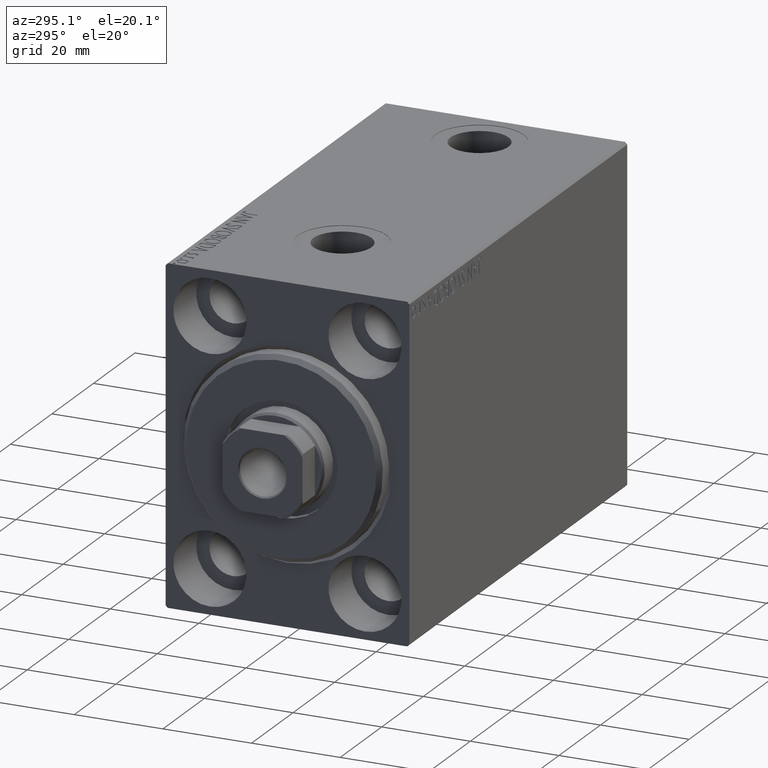
[diagram: clean part render]
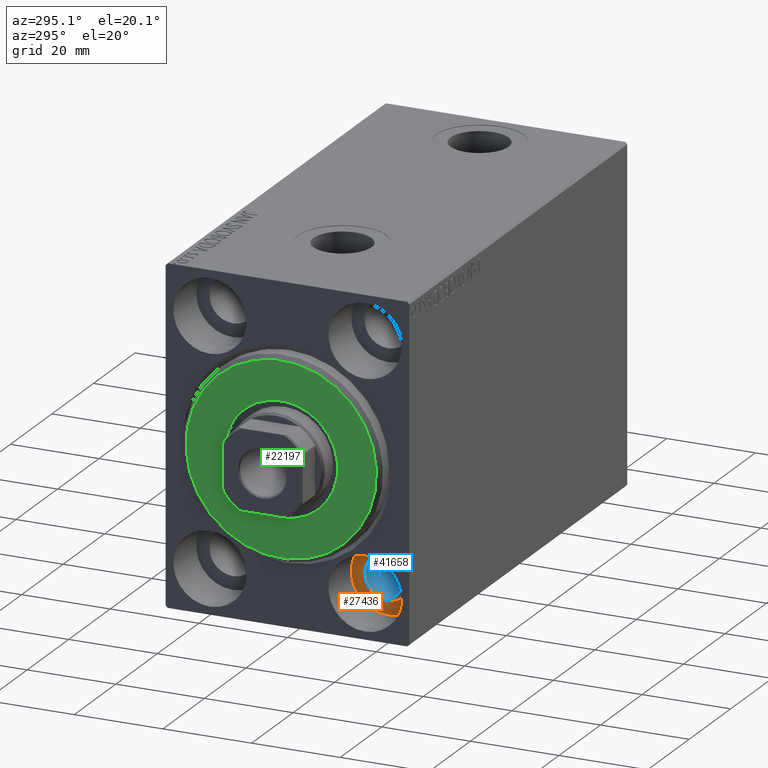
[diagram: same view with three faces highlighted in distinct colors, each labeled with its STEP entity id]
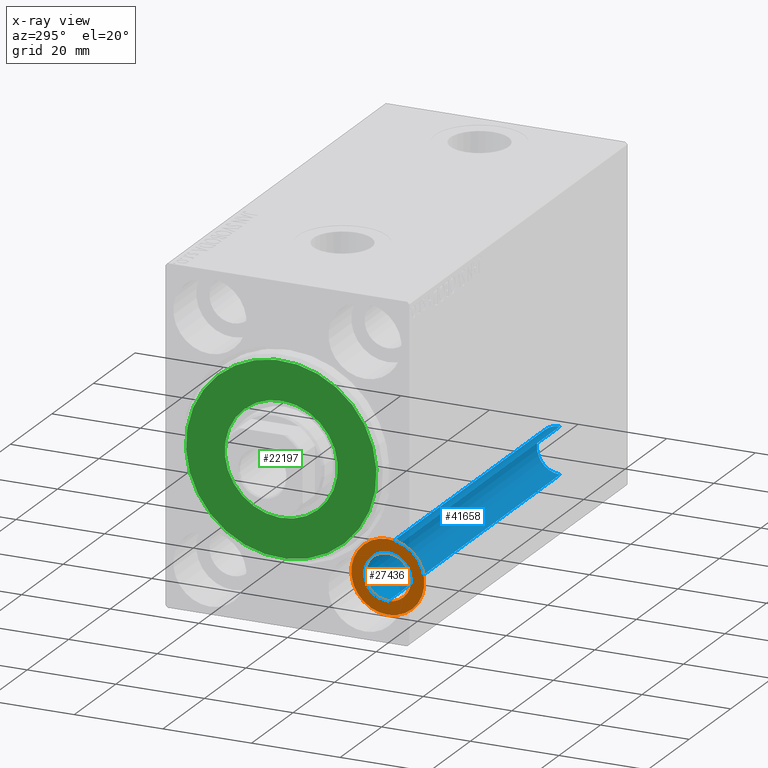
[diagram: x-ray of the same camera — body ghosted, the three highlighted faces saturated]
A machine part, auxiliary view with three faces highlighted in distinct colors.
The next image is the same camera in x-ray (body ghosted, the three faces saturated) — at least one of them is partly hidden behind the body in this view.
Their STEP definitions:

[orange] entity #27436 — the highlighted planar face has unit normal (-1, 0, 0).
#604 = AXIS2_PLACEMENT_3D ( 'NONE', #7186, #10510, #27450 ) ;
#1073 = EDGE_CURVE ( 'NONE', #11516, #18631, #21188, .T. ) ;
#1181 = CIRCLE ( 'NONE', #33876, 5.250000000000000888 ) ;
#4526 = EDGE_CURVE ( 'NONE', #39496, #34559, #35400, .T. ) ;
#5536 = DIRECTION ( 'NONE',  ( -1.000000000000000000, 0.000000000000000000, 0.000000000000000000 ) ) ;
#7186 = CARTESIAN_POINT ( 'NONE',  ( 10.99999999999999645, -17.50000000000000355, -27.50000000000000355 ) ) ;
#7465 = EDGE_CURVE ( 'NONE', #18631, #11516, #9205, .T. ) ;
#9106 = DIRECTION ( 'NONE',  ( 0.000000000000000000, 0.000000000000000000, 1.000000000000000000 ) ) ;
#9205 = CIRCLE ( 'NONE', #36214, 8.250000000000000000 ) ;
#10510 = DIRECTION ( 'NONE',  ( -1.000000000000000000, 0.000000000000000000, 0.000000000000000000 ) ) ;
#10927 = DIRECTION ( 'NONE',  ( -1.000000000000000000, 0.000000000000000000, 0.000000000000000000 ) ) ;
#11516 = VERTEX_POINT ( 'NONE', #22967 ) ;
#14281 = PLANE ( 'NONE',  #39535 ) ;
#17079 = DIRECTION ( 'NONE',  ( 0.000000000000000000, 0.000000000000000000, 1.000000000000000000 ) ) ;
#17809 = CARTESIAN_POINT ( 'NONE',  ( 10.99999999999999645, -17.50000000000000355, -22.25000000000000355 ) ) ;
#18631 = VERTEX_POINT ( 'NONE', #43142 ) ;
#20183 = CARTESIAN_POINT ( 'NONE',  ( 11.00000000000000000, -17.50000000000000355, -27.50000000000000355 ) ) ;
#21188 = CIRCLE ( 'NONE', #28975, 8.250000000000000000 ) ;
#22967 = CARTESIAN_POINT ( 'NONE',  ( 11.00000000000000000, -17.50000000000000355, -35.75000000000000711 ) ) ;
#23526 = DIRECTION ( 'NONE',  ( -1.000000000000000000, 0.000000000000000000, 0.000000000000000000 ) ) ;
#25626 = ORIENTED_EDGE ( 'NONE', *, *, #4526, .F. ) ;
#27436 = ADVANCED_FACE ( 'NONE', ( #34518, #31197 ), #14281, .T. ) ;
#27450 = DIRECTION ( 'NONE',  ( 0.000000000000000000, 0.000000000000000000, 1.000000000000000000 ) ) ;
#27521 = EDGE_CURVE ( 'NONE', #34559, #39496, #1181, .T. ) ;
#27875 = CARTESIAN_POINT ( 'NONE',  ( 11.00000000000000000, 0.000000000000000000, 0.000000000000000000 ) ) ;
#28975 = AXIS2_PLACEMENT_3D ( 'NONE', #43980, #30872, #17079 ) ;
#29380 = CARTESIAN_POINT ( 'NONE',  ( 10.99999999999999645, -17.50000000000000355, -27.50000000000000355 ) ) ;
#30872 = DIRECTION ( 'NONE',  ( -1.000000000000000000, 0.000000000000000000, 0.000000000000000000 ) ) ;
#31197 = FACE_OUTER_BOUND ( 'NONE', #32484, .T. ) ;
#32484 = EDGE_LOOP ( 'NONE', ( #35823, #43295 ) ) ;
#33876 = AXIS2_PLACEMENT_3D ( 'NONE', #29380, #5536, #38921 ) ;
#34176 = DIRECTION ( 'NONE',  ( 0.000000000000000000, 0.000000000000000000, 1.000000000000000000 ) ) ;
#34518 = FACE_BOUND ( 'NONE', #36803, .T. ) ;
#34559 = VERTEX_POINT ( 'NONE', #43465 ) ;
#35400 = CIRCLE ( 'NONE', #604, 5.250000000000000888 ) ;
#35448 = ORIENTED_EDGE ( 'NONE', *, *, #27521, .F. ) ;
#35823 = ORIENTED_EDGE ( 'NONE', *, *, #7465, .T. ) ;
#36214 = AXIS2_PLACEMENT_3D ( 'NONE', #20183, #23526, #34176 ) ;
#36803 = EDGE_LOOP ( 'NONE', ( #25626, #35448 ) ) ;
#38921 = DIRECTION ( 'NONE',  ( 0.000000000000000000, 0.000000000000000000, 1.000000000000000000 ) ) ;
#39496 = VERTEX_POINT ( 'NONE', #17809 ) ;
#39535 = AXIS2_PLACEMENT_3D ( 'NONE', #27875, #10927, #9106 ) ;
#43142 = CARTESIAN_POINT ( 'NONE',  ( 11.00000000000000000, -17.50000000000000355, -19.25000000000000355 ) ) ;
#43295 = ORIENTED_EDGE ( 'NONE', *, *, #1073, .T. ) ;
#43465 = CARTESIAN_POINT ( 'NONE',  ( 10.99999999999999645, -17.50000000000000355, -32.75000000000000000 ) ) ;
#43980 = CARTESIAN_POINT ( 'NONE',  ( 11.00000000000000000, -17.50000000000000355, -27.50000000000000355 ) ) ;

[blue] entity #41658 — the highlighted cylindrical surface (edge-blend (fillet) strip) has radius 5.25 mm, axis along (-1, -0, -0).
#14 = CARTESIAN_POINT ( 'NONE',  ( 105.0000000000000000, -17.50000000000000355, -22.25000000000000355 ) ) ;
#604 = AXIS2_PLACEMENT_3D ( 'NONE', #7186, #10510, #27450 ) ;
#2347 = DIRECTION ( 'NONE',  ( 0.000000000000000000, 0.000000000000000000, 1.000000000000000000 ) ) ;
#4526 = EDGE_CURVE ( 'NONE', #39496, #34559, #35400, .T. ) ;
#4686 = EDGE_LOOP ( 'NONE', ( #39231, #13469, #15693, #42048 ) ) ;
#7186 = CARTESIAN_POINT ( 'NONE',  ( 10.99999999999999645, -17.50000000000000355, -27.50000000000000355 ) ) ;
#8551 = DIRECTION ( 'NONE',  ( 0.000000000000000000, 0.000000000000000000, -1.000000000000000000 ) ) ;
#9857 = CIRCLE ( 'NONE', #39696, 5.249999999999997335 ) ;
#10510 = DIRECTION ( 'NONE',  ( -1.000000000000000000, 0.000000000000000000, 0.000000000000000000 ) ) ;
#12163 = CARTESIAN_POINT ( 'NONE',  ( 94.00000000000000000, -17.50000000000000355, -32.75000000000000000 ) ) ;
#13256 = CYLINDRICAL_SURFACE ( 'NONE', #20645, 5.250000000000000888 ) ;
#13469 = ORIENTED_EDGE ( 'NONE', *, *, #34339, .F. ) ;
#14022 = DIRECTION ( 'NONE',  ( -1.000000000000000000, -0.000000000000000000, -0.000000000000000000 ) ) ;
#15693 = ORIENTED_EDGE ( 'NONE', *, *, #39323, .T. ) ;
#15897 = CARTESIAN_POINT ( 'NONE',  ( 105.0000000000000000, -17.50000000000000355, -32.75000000000000000 ) ) ;
#17809 = CARTESIAN_POINT ( 'NONE',  ( 10.99999999999999645, -17.50000000000000355, -22.25000000000000355 ) ) ;
#18789 = CARTESIAN_POINT ( 'NONE',  ( 94.00000000000000000, -17.50000000000000355, -27.50000000000000355 ) ) ;
#19129 = VECTOR ( 'NONE', #14022, 1000.000000000000000 ) ;
#19253 = LINE ( 'NONE', #15897, #19947 ) ;
#19738 = VERTEX_POINT ( 'NONE', #12163 ) ;
#19947 = VECTOR ( 'NONE', #23481, 1000.000000000000000 ) ;
#19958 = CARTESIAN_POINT ( 'NONE',  ( 105.0000000000000000, -17.50000000000000355, -27.50000000000000355 ) ) ;
#20069 = LINE ( 'NONE', #14, #19129 ) ;
#20645 = AXIS2_PLACEMENT_3D ( 'NONE', #19958, #33281, #2347 ) ;
#23481 = DIRECTION ( 'NONE',  ( -1.000000000000000000, -0.000000000000000000, -0.000000000000000000 ) ) ;
#25468 = DIRECTION ( 'NONE',  ( -1.000000000000000000, -0.000000000000000000, -0.000000000000000000 ) ) ;
#27085 = FACE_OUTER_BOUND ( 'NONE', #4686, .T. ) ;
#27450 = DIRECTION ( 'NONE',  ( 0.000000000000000000, 0.000000000000000000, 1.000000000000000000 ) ) ;
#28542 = CARTESIAN_POINT ( 'NONE',  ( 94.00000000000000000, -17.50000000000000355, -22.25000000000000355 ) ) ;
#33281 = DIRECTION ( 'NONE',  ( -1.000000000000000000, -0.000000000000000000, -0.000000000000000000 ) ) ;
#34339 = EDGE_CURVE ( 'NONE', #40975, #19738, #9857, .T. ) ;
#34559 = VERTEX_POINT ( 'NONE', #43465 ) ;
#35400 = CIRCLE ( 'NONE', #604, 5.250000000000000888 ) ;
#39231 = ORIENTED_EDGE ( 'NONE', *, *, #43516, .F. ) ;
#39323 = EDGE_CURVE ( 'NONE', #40975, #39496, #20069, .T. ) ;
#39496 = VERTEX_POINT ( 'NONE', #17809 ) ;
#39696 = AXIS2_PLACEMENT_3D ( 'NONE', #18789, #25468, #8551 ) ;
#40975 = VERTEX_POINT ( 'NONE', #28542 ) ;
#41658 = ADVANCED_FACE ( 'NONE', ( #27085 ), #13256, .F. ) ;
#42048 = ORIENTED_EDGE ( 'NONE', *, *, #4526, .T. ) ;
#43465 = CARTESIAN_POINT ( 'NONE',  ( 10.99999999999999645, -17.50000000000000355, -32.75000000000000000 ) ) ;
#43516 = EDGE_CURVE ( 'NONE', #19738, #34559, #19253, .T. ) ;

[green] entity #22197 — the highlighted planar face has unit normal (-1, 0, 0).
#516 = CARTESIAN_POINT ( 'NONE',  ( 3.000000000000000000, 0.000000000000000000, 0.000000000000000000 ) ) ;
#583 = CIRCLE ( 'NONE', #28336, 12.75000000000000000 ) ;
#1431 = DIRECTION ( 'NONE',  ( 0.000000000000000000, 0.000000000000000000, -1.000000000000000000 ) ) ;
#2088 = AXIS2_PLACEMENT_3D ( 'NONE', #30609, #37460, #21415 ) ;
#2140 = VERTEX_POINT ( 'NONE', #21301 ) ;
#2618 = EDGE_LOOP ( 'NONE', ( #42990, #19742 ) ) ;
#2766 = VERTEX_POINT ( 'NONE', #22889 ) ;
#4551 = FACE_BOUND ( 'NONE', #2618, .T. ) ;
#4759 = DIRECTION ( 'NONE',  ( 1.000000000000000000, -0.000000000000000000, 0.000000000000000000 ) ) ;
#5177 = EDGE_CURVE ( 'NONE', #2766, #8914, #36141, .T. ) ;
#8914 = VERTEX_POINT ( 'NONE', #34773 ) ;
#9022 = DIRECTION ( 'NONE',  ( 0.000000000000000000, 0.000000000000000000, -1.000000000000000000 ) ) ;
#9677 = EDGE_CURVE ( 'NONE', #19453, #2140, #12834, .T. ) ;
#12834 = CIRCLE ( 'NONE', #27074, 21.50000000000000355 ) ;
#14314 = ORIENTED_EDGE ( 'NONE', *, *, #36721, .T. ) ;
#15223 = FACE_OUTER_BOUND ( 'NONE', #22902, .T. ) ;
#17934 = CARTESIAN_POINT ( 'NONE',  ( 3.000000000000000000, 0.000000000000000000, 0.000000000000000000 ) ) ;
#19453 = VERTEX_POINT ( 'NONE', #31126 ) ;
#19742 = ORIENTED_EDGE ( 'NONE', *, *, #32932, .T. ) ;
#20774 = CARTESIAN_POINT ( 'NONE',  ( 3.000000000000000000, 0.000000000000000000, 0.000000000000000000 ) ) ;
#21301 = CARTESIAN_POINT ( 'NONE',  ( 3.000000000000000000, 0.000000000000000000, 21.50000000000000355 ) ) ;
#21415 = DIRECTION ( 'NONE',  ( 0.000000000000000000, 0.000000000000000000, -1.000000000000000000 ) ) ;
#22197 = ADVANCED_FACE ( 'NONE', ( #15223, #4551 ), #39021, .T. ) ;
#22889 = CARTESIAN_POINT ( 'NONE',  ( 3.000000000000000000, 0.000000000000000000, 12.75000000000000000 ) ) ;
#22902 = EDGE_LOOP ( 'NONE', ( #14314, #30635 ) ) ;
#23282 = CARTESIAN_POINT ( 'NONE',  ( 3.000000000000000000, 0.000000000000000000, 0.000000000000000000 ) ) ;
#23409 = AXIS2_PLACEMENT_3D ( 'NONE', #23282, #36144, #9022 ) ;
#25001 = DIRECTION ( 'NONE',  ( 0.000000000000000000, 0.000000000000000000, -1.000000000000000000 ) ) ;
#27074 = AXIS2_PLACEMENT_3D ( 'NONE', #516, #34994, #25001 ) ;
#28336 = AXIS2_PLACEMENT_3D ( 'NONE', #20774, #41218, #34112 ) ;
#30609 = CARTESIAN_POINT ( 'NONE',  ( 3.000000000000000000, 0.000000000000000000, 0.000000000000000000 ) ) ;
#30635 = ORIENTED_EDGE ( 'NONE', *, *, #9677, .T. ) ;
#31126 = CARTESIAN_POINT ( 'NONE',  ( 3.000000000000000000, 2.694222958124177598E-15, -21.50000000000000355 ) ) ;
#31632 = AXIS2_PLACEMENT_3D ( 'NONE', #17934, #4759, #1431 ) ;
#32932 = EDGE_CURVE ( 'NONE', #8914, #2766, #583, .T. ) ;
#34112 = DIRECTION ( 'NONE',  ( 0.000000000000000000, 0.000000000000000000, -1.000000000000000000 ) ) ;
#34773 = CARTESIAN_POINT ( 'NONE',  ( 3.000000000000000000, 1.561424668912874914E-15, -12.75000000000000000 ) ) ;
#34994 = DIRECTION ( 'NONE',  ( 1.000000000000000000, -0.000000000000000000, 0.000000000000000000 ) ) ;
#36141 = CIRCLE ( 'NONE', #23409, 12.75000000000000000 ) ;
#36144 = DIRECTION ( 'NONE',  ( -1.000000000000000000, 0.000000000000000000, -0.000000000000000000 ) ) ;
#36721 = EDGE_CURVE ( 'NONE', #2140, #19453, #41207, .T. ) ;
#37460 = DIRECTION ( 'NONE',  ( 1.000000000000000000, -0.000000000000000000, 0.000000000000000000 ) ) ;
#39021 = PLANE ( 'NONE',  #31632 ) ;
#41207 = CIRCLE ( 'NONE', #2088, 21.50000000000000355 ) ;
#41218 = DIRECTION ( 'NONE',  ( -1.000000000000000000, 0.000000000000000000, -0.000000000000000000 ) ) ;
#42990 = ORIENTED_EDGE ( 'NONE', *, *, #5177, .T. ) ;